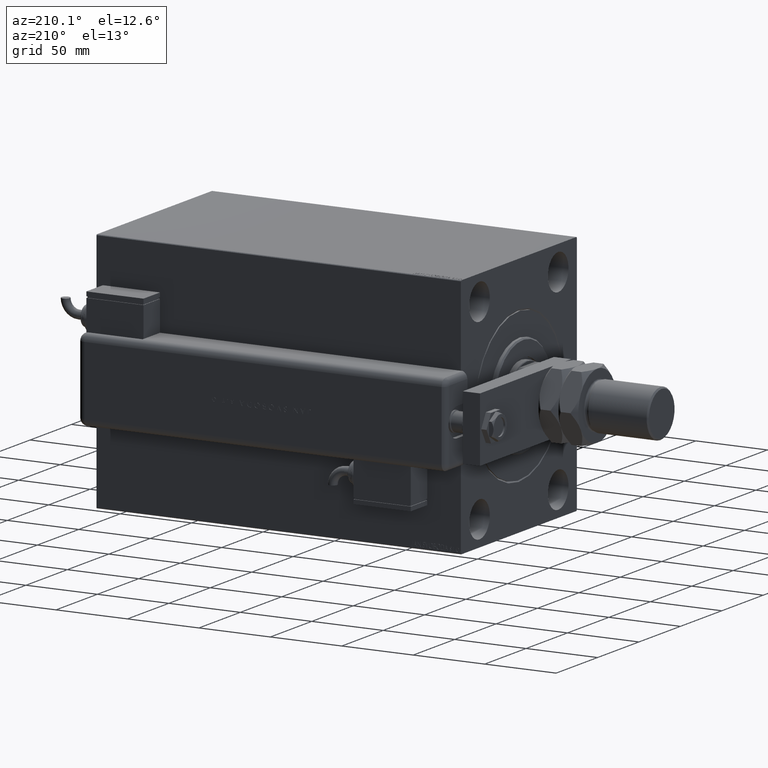
[diagram: clean part render]
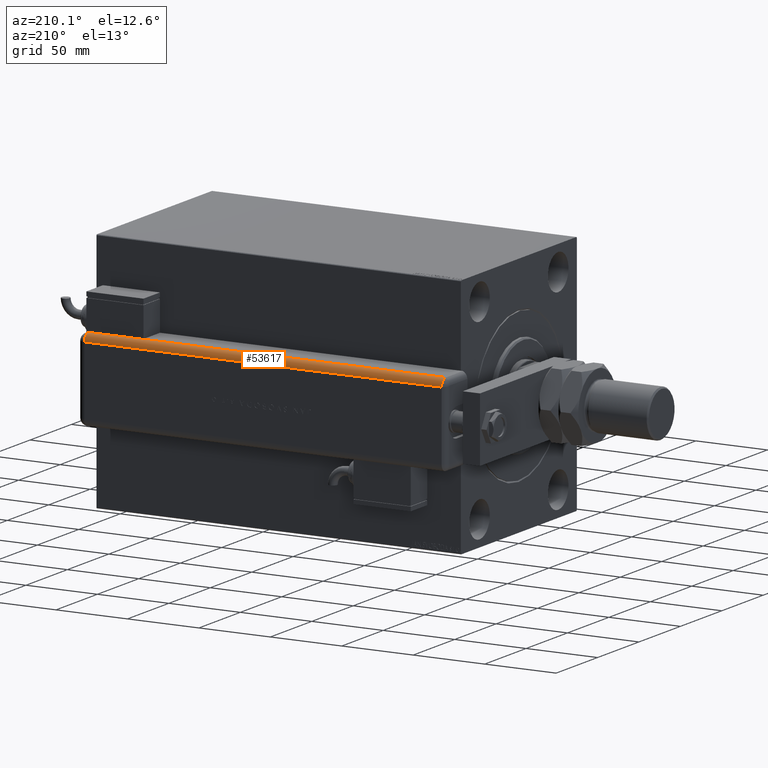
[diagram: same view with one face highlighted and labeled with its STEP entity id]
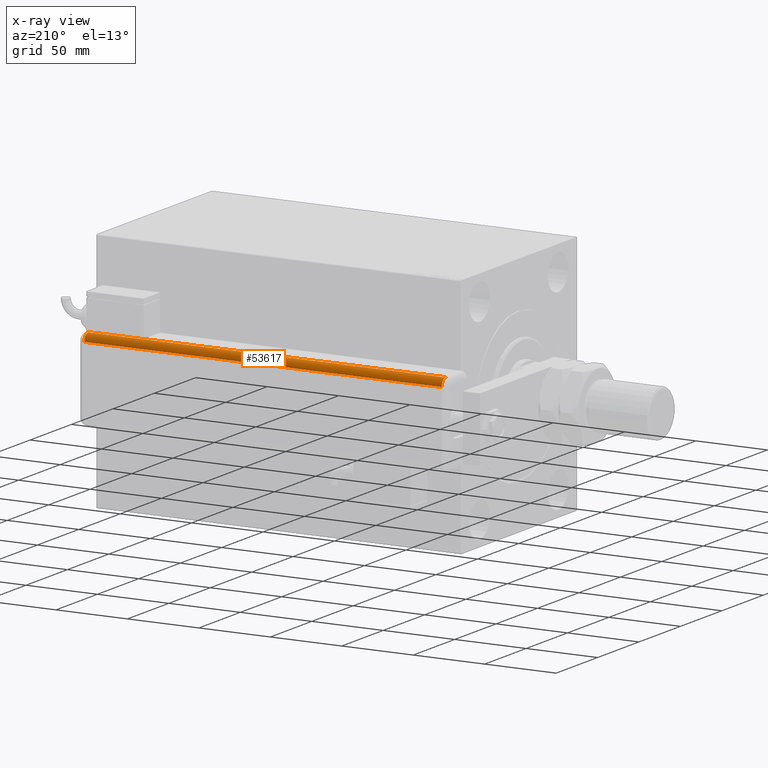
[diagram: x-ray of the same camera — body ghosted, the highlighted face saturated]
A machine part, auxiliary view. The second image highlights one B-rep face of the part: STEP entity #53617.
The next image is the same camera in x-ray: the body ghosted, the highlighted face saturated — about 0% of this face is hidden behind the body in this view.
In plain terms, the highlighted cylindrical surface (edge-blend (fillet) strip) has radius 5 mm, axis along (1, -0, -0).
Its self-contained STEP definition (entity closure, byte-faithful):
#68 = LINE ( 'NONE', #10022, #23446 ) ;
#1023 = CARTESIAN_POINT ( 'NONE',  ( 28.99599839871871154, 21.00000000000000000, 5.000000000000004441 ) ) ;
#1033 = ORIENTED_EDGE ( 'NONE', *, *, #48362, .F. ) ;
#1517 = VECTOR ( 'NONE', #23023, 1000.000000000000000 ) ;
#3526 = VERTEX_POINT ( 'NONE', #10890 ) ;
#5592 = ORIENTED_EDGE ( 'NONE', *, *, #57829, .F. ) ;
#5793 = EDGE_CURVE ( 'NONE', #10494, #21147, #29908, .T. ) ;
#5912 = AXIS2_PLACEMENT_3D ( 'NONE', #15205, #61346, #11448 ) ;
#9149 = ORIENTED_EDGE ( 'NONE', *, *, #18518, .F. ) ;
#10022 = CARTESIAN_POINT ( 'NONE',  ( 28.99599839871871154, 20.99999999999996092, 255.0000000000000000 ) ) ;
#10494 = VERTEX_POINT ( 'NONE', #39340 ) ;
#10890 = CARTESIAN_POINT ( 'NONE',  ( 23.99999999999999289, 25.79999999999998295, 5.000000000000004441 ) ) ;
#11448 = DIRECTION ( 'NONE',  ( -1.000000000000000000, 0.000000000000000000, 0.000000000000000000 ) ) ;
#13126 = ORIENTED_EDGE ( 'NONE', *, *, #51650, .F. ) ;
#15205 = CARTESIAN_POINT ( 'NONE',  ( 23.99999999999999289, 20.79999999999998295, 255.0000000000000000 ) ) ;
#16000 = DIRECTION ( 'NONE',  ( 0.000000000000000000, 0.000000000000000000, -1.000000000000000000 ) ) ;
#16023 = AXIS2_PLACEMENT_3D ( 'NONE', #34835, #53818, #29561 ) ;
#16063 = DIRECTION ( 'NONE',  ( -0.000000000000000000, -0.000000000000000000, 1.000000000000000000 ) ) ;
#16815 = CARTESIAN_POINT ( 'NONE',  ( 28.99999999999999645, 20.79999999999998295, 255.0000000000000000 ) ) ;
#18518 = EDGE_CURVE ( 'NONE', #26906, #3526, #56608, .T. ) ;
#19356 = CIRCLE ( 'NONE', #33246, 5.000000000000000888 ) ;
#19364 = DIRECTION ( 'NONE',  ( -0.000000000000000000, -0.000000000000000000, 1.000000000000000000 ) ) ;
#20417 = LINE ( 'NONE', #49329, #45789 ) ;
#21147 = VERTEX_POINT ( 'NONE', #46864 ) ;
#21261 = CARTESIAN_POINT ( 'NONE',  ( 23.99999999999999289, 20.79999999999998295, 5.000000000000004441 ) ) ;
#23023 = DIRECTION ( 'NONE',  ( 0.000000000000000000, 0.000000000000000000, -1.000000000000000000 ) ) ;
#23446 = VECTOR ( 'NONE', #19364, 1000.000000000000000 ) ;
#24524 = ORIENTED_EDGE ( 'NONE', *, *, #32309, .T. ) ;
#25658 = DIRECTION ( 'NONE',  ( -0.000000000000000000, -0.000000000000000000, 1.000000000000000000 ) ) ;
#25938 = FACE_OUTER_BOUND ( 'NONE', #39895, .T. ) ;
#25955 = DIRECTION ( 'NONE',  ( -1.000000000000000000, 0.000000000000000000, 0.000000000000000000 ) ) ;
#26906 = VERTEX_POINT ( 'NONE', #30004 ) ;
#28656 = ORIENTED_EDGE ( 'NONE', *, *, #5793, .F. ) ;
#29561 = DIRECTION ( 'NONE',  ( 1.000000000000000000, -6.383782391594648845E-14, 0.000000000000000000 ) ) ;
#29908 = CIRCLE ( 'NONE', #16023, 5.000000000000000888 ) ;
#30004 = CARTESIAN_POINT ( 'NONE',  ( 23.99999999999999289, 25.79999999999998295, 255.0000000000000000 ) ) ;
#30286 = CARTESIAN_POINT ( 'NONE',  ( 23.99999999999999289, 20.79999999999998295, 255.0000000000000000 ) ) ;
#32309 = EDGE_CURVE ( 'NONE', #58948, #3526, #19356, .T. ) ;
#33246 = AXIS2_PLACEMENT_3D ( 'NONE', #21261, #25658, #25955 ) ;
#34835 = CARTESIAN_POINT ( 'NONE',  ( 23.99999999999999289, 20.79999999999998295, 42.99999999999998579 ) ) ;
#35471 = VERTEX_POINT ( 'NONE', #16815 ) ;
#37630 = CARTESIAN_POINT ( 'NONE',  ( 23.99999999999999289, 25.79999999999998295, 255.0000000000000000 ) ) ;
#38710 = CYLINDRICAL_SURFACE ( 'NONE', #55031, 5.000000000000000888 ) ;
#39340 = CARTESIAN_POINT ( 'NONE',  ( 28.99599839871871154, 20.99999999999999289, 43.00000000000000000 ) ) ;
#39895 = EDGE_LOOP ( 'NONE', ( #28656, #5592, #24524, #9149, #1033, #13126 ) ) ;
#44905 = DIRECTION ( 'NONE',  ( -1.000000000000000000, 0.000000000000000000, 0.000000000000000000 ) ) ;
#45789 = VECTOR ( 'NONE', #16063, 1000.000000000000000 ) ;
#46864 = CARTESIAN_POINT ( 'NONE',  ( 28.99999999999999645, 20.79999999999998295, 43.00000000000000000 ) ) ;
#48362 = EDGE_CURVE ( 'NONE', #35471, #26906, #49601, .T. ) ;
#49329 = CARTESIAN_POINT ( 'NONE',  ( 28.99999999999999645, 20.79999999999998295, 255.0000000000000000 ) ) ;
#49601 = CIRCLE ( 'NONE', #5912, 5.000000000000000888 ) ;
#51650 = EDGE_CURVE ( 'NONE', #21147, #35471, #20417, .T. ) ;
#53617 = ADVANCED_FACE ( 'NONE', ( #25938 ), #38710, .T. ) ;
#53818 = DIRECTION ( 'NONE',  ( -0.000000000000000000, 0.000000000000000000, -1.000000000000000000 ) ) ;
#55031 = AXIS2_PLACEMENT_3D ( 'NONE', #30286, #16000, #44905 ) ;
#56608 = LINE ( 'NONE', #37630, #1517 ) ;
#57829 = EDGE_CURVE ( 'NONE', #58948, #10494, #68, .T. ) ;
#58948 = VERTEX_POINT ( 'NONE', #1023 ) ;
#61346 = DIRECTION ( 'NONE',  ( -0.000000000000000000, -0.000000000000000000, 1.000000000000000000 ) ) ;